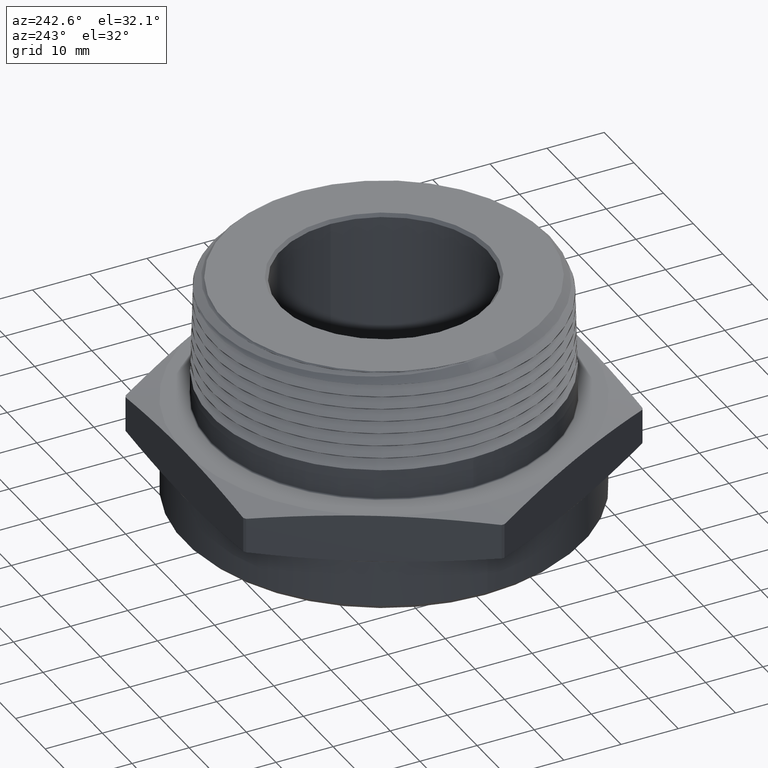
[diagram: clean part render]
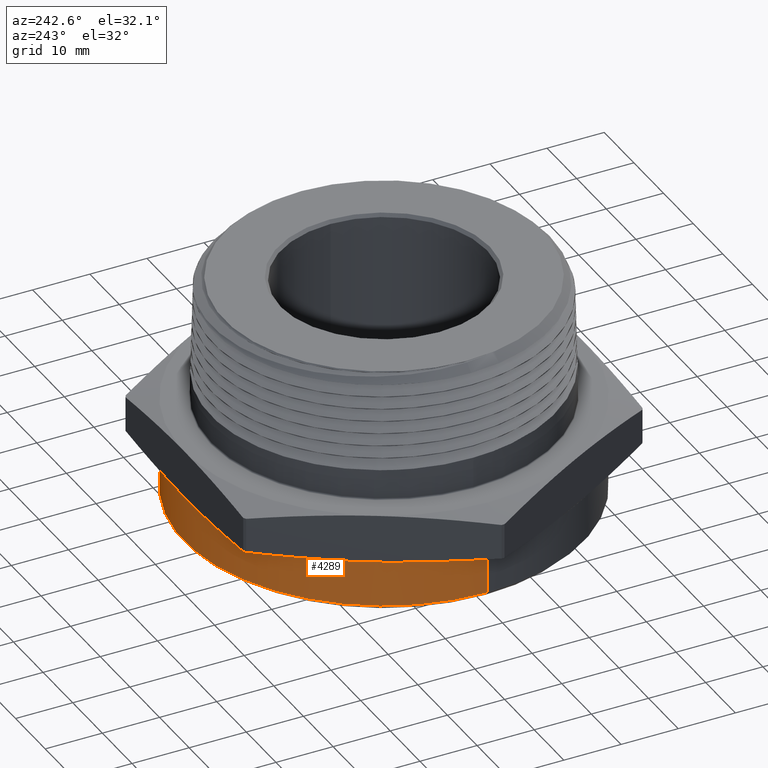
[diagram: same view with one face highlighted and labeled with its STEP entity id]
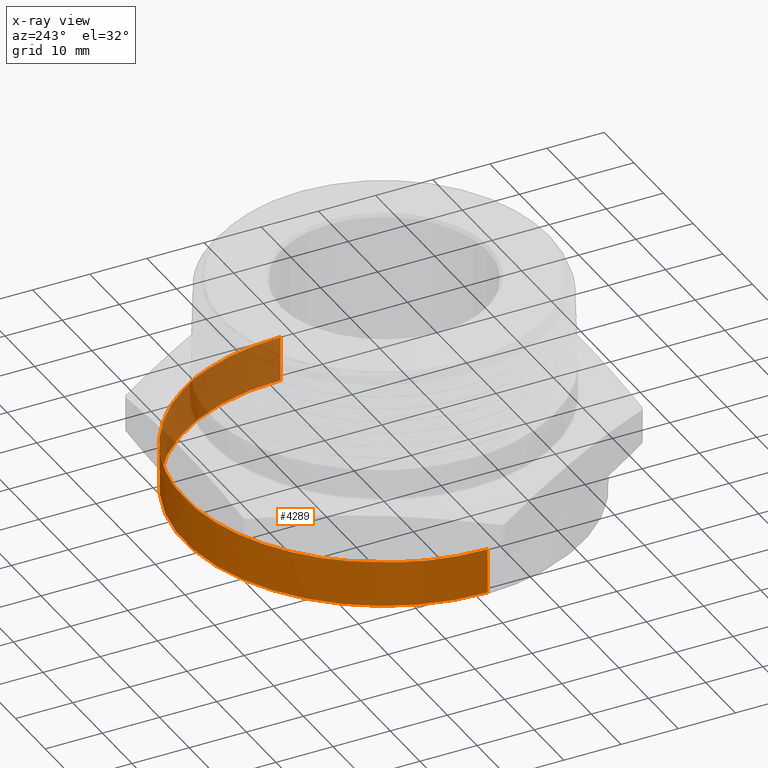
[diagram: x-ray of the same camera — body ghosted, the highlighted face saturated]
A machine part, auxiliary view. The second image highlights one B-rep face of the part: STEP entity #4289.
The next image is the same camera in x-ray: the body ghosted, the highlighted face saturated — about 27% of this face is hidden behind the body in this view.
In plain terms, the highlighted cylindrical surface (partial cylindrical patch) has radius 34.915 mm, axis along (0, 0, 1).
Its self-contained STEP definition (entity closure, byte-faithful):
#93 = B_SPLINE_CURVE_WITH_KNOTS ( 'NONE', 3,
 ( #724, #725, #729, #730, #731, #732, #733, #734, #735, #736, #737, #738, #739, #740 ),
 .UNSPECIFIED., .F., .F.,
 ( 4, 2, 2, 2, 2, 2, 4 ),
 ( 0.0000000000000000000, 0.001824775632309689500, 0.002737163448464529300, 0.003649551264619369400, 0.004561939080774209500, 0.005474326896929048200, 0.007299102529238720600 ),
 .UNSPECIFIED. ) ;
#566 = CARTESIAN_POINT ( 'NONE',  ( -0.1432454279627999000, 1.367122242230997400, -0.008097840331950394500 ) ) ;
#567 = CARTESIAN_POINT ( 'NONE',  ( -1.374606299212598500, 1.683407204418497500E-016, -0.008097840331950316400 ) ) ;
#570 = CARTESIAN_POINT ( 'NONE',  ( -1.255585305832187700, 0.5595069415237380300, -0.008097840331950323400 ) ) ;
#575 = CARTESIAN_POINT ( 'NONE',  ( 0.1432454279627999300, 1.367122242230997400, -0.008097840331950411800 ) ) ;
#576 = CARTESIAN_POINT ( 'NONE',  ( 1.112339877869386500, 0.8076153007072575100, -0.008097840331950472600 ) ) ;
#577 = CARTESIAN_POINT ( 'NONE',  ( 1.255585305832186600, 0.5595069415237408100, -0.008097840331950483000 ) ) ;
#578 = CARTESIAN_POINT ( 'NONE',  ( 1.374606299212598500, 0.0000000000000000000, -0.008097840331950489900 ) ) ;
#637 = CARTESIAN_POINT ( 'NONE',  ( -1.112339877869385400, 0.8076153007072590700, -0.008097840331950333800 ) ) ;
#656 = CARTESIAN_POINT ( 'NONE',  ( 1.374606299212598500, 0.0000000000000000000, -0.3199999999999996200 ) ) ;
#657 = CARTESIAN_POINT ( 'NONE',  ( -1.374606299212598500, 1.683407204418497500E-016, -0.3199999999999996200 ) ) ;
#698 = CARTESIAN_POINT ( 'NONE',  ( 0.0000000000000000000, 0.0000000000000000000, -0.3199999999999996200 ) ) ;
#699 = DIRECTION ( 'NONE',  ( 0.0000000000000000000, 0.0000000000000000000, 1.000000000000000000 ) ) ;
#700 = DIRECTION ( 'NONE',  ( -1.000000000000000000, 0.0000000000000000000, 0.0000000000000000000 ) ) ;
#713 = CARTESIAN_POINT ( 'NONE',  ( 0.0000000000000000000, 0.0000000000000000000, -0.008097840331950403200 ) ) ;
#714 = DIRECTION ( 'NONE',  ( -6.274932739761922300E-017, -0.0000000000000000000, -1.000000000000000000 ) ) ;
#715 = DIRECTION ( 'NONE',  ( -1.000000000000000000, 0.0000000000000000000, 6.288155232086915300E-017 ) ) ;
#719 = CARTESIAN_POINT ( 'NONE',  ( -1.374606299212598500, 1.683407204418497500E-016, -0.3599999999999999900 ) ) ;
#720 = DIRECTION ( 'NONE',  ( -0.0000000000000000000, -0.0000000000000000000, 1.000000000000000000 ) ) ;
#724 = CARTESIAN_POINT ( 'NONE',  ( -1.255585305832187700, 0.5595069415237380300, -0.008097840331950323400 ) ) ;
#725 = CARTESIAN_POINT ( 'NONE',  ( -1.245836642652707000, 0.5813838430083370100, -0.008097840331950155100 ) ) ;
#729 = CARTESIAN_POINT ( 'NONE',  ( -1.235523764346031100, 0.6029882535388235700, -0.007126066441219693900 ) ) ;
#730 = CARTESIAN_POINT ( 'NONE',  ( -1.219240642218467000, 0.6349311508197670300, -0.005238497239708470900 ) ) ;
#731 = CARTESIAN_POINT ( 'NONE',  ( -1.213675407137487800, 0.6455055487275681600, -0.004522194575074542000 ) ) ;
#732 = CARTESIAN_POINT ( 'NONE',  ( -1.202264396788997200, 0.6665176123269458400, -0.003245618310908094000 ) ) ;
#733 = CARTESIAN_POINT ( 'NONE',  ( -1.196421868225769700, 0.6769494388475181300, -0.002694132162923796500 ) ) ;
#734 = CARTESIAN_POINT ( 'NONE',  ( -1.184448648612924000, 0.6976870561532787500, -0.002695124420955359200 ) ) ;
#735 = CARTESIAN_POINT ( 'NONE',  ( -1.178328778954632400, 0.7079735592674840600, -0.003247932820578342500 ) ) ;
#736 = CARTESIAN_POINT ( 'NONE',  ( -1.165842598067856600, 0.7283517752192108000, -0.004524368469978079900 ) ) ;
#737 = CARTESIAN_POINT ( 'NONE',  ( -1.159470592983083500, 0.7384531885435206000, -0.005240182578535109100 ) ) ;
#738 = CARTESIAN_POINT ( 'NONE',  ( -1.139957988607032600, 0.7685109116705389800, -0.007126515463493598500 ) ) ;
#739 = CARTESIAN_POINT ( 'NONE',  ( -1.126422586886128400, 0.7882189881138300700, -0.008097840331997776700 ) ) ;
#740 = CARTESIAN_POINT ( 'NONE',  ( -1.112339877869385400, 0.8076153007072590700, -0.008097840331950333800 ) ) ;
#741 = CARTESIAN_POINT ( 'NONE',  ( -0.1432454279627999000, 1.367122242230997400, -0.008097840331950394500 ) ) ;
#742 = CARTESIAN_POINT ( 'NONE',  ( -0.1194251439313076100, 1.369618103006927900, -0.008097840331950344200 ) ) ;
#743 = CARTESIAN_POINT ( 'NONE',  ( 0.0000000000000000000, 0.0000000000000000000, -0.008097840331950403200 ) ) ;
#744 = DIRECTION ( 'NONE',  ( -6.274932739761922300E-017, -0.0000000000000000000, -1.000000000000000000 ) ) ;
#745 = DIRECTION ( 'NONE',  ( -1.000000000000000000, 0.0000000000000000000, 6.288155232086915300E-017 ) ) ;
#746 = CARTESIAN_POINT ( 'NONE',  ( 1.374606299212598500, 0.0000000000000000000, -0.3599999999999999900 ) ) ;
#747 = CARTESIAN_POINT ( 'NONE',  ( -0.09555873642478054900, 1.371489093672453500, -0.007126066441219781500 ) ) ;
#748 = CARTESIAN_POINT ( 'NONE',  ( -0.05975381484522480900, 1.373358944897530500, -0.005238497239709064200 ) ) ;
#749 = CARTESIAN_POINT ( 'NONE',  ( -0.04781350008685483100, 1.373826508893269700, -0.004522194575074913300 ) ) ;
#750 = CARTESIAN_POINT ( 'NONE',  ( -0.02391101404961459800, 1.374450315848318800, -0.003245618310908350300 ) ) ;
#751 = CARTESIAN_POINT ( 'NONE',  ( -0.01195552299331296100, 1.374606450950513100, -0.002694132162926925100 ) ) ;
#752 = CARTESIAN_POINT ( 'NONE',  ( 0.01199039021385806700, 1.374606147253579300, -0.002695124420957610000 ) ) ;
#753 = CARTESIAN_POINT ( 'NONE',  ( 0.02395869805601299300, 1.374449436218751800, -0.003247932820579554600 ) ) ;
#754 = CARTESIAN_POINT ( 'NONE',  ( 0.04784984119740132900, 1.373825194350419600, -0.004524368469978902100 ) ) ;
#755 = CARTESIAN_POINT ( 'NONE',  ( 0.05978392429276639000, 1.373357582736117700, -0.005240182578535718800 ) ) ;
#756 = CARTESIAN_POINT ( 'NONE',  ( 0.09557097828870786400, 1.371488033215970900, -0.007126515463493942800 ) ) ;
#757 = CARTESIAN_POINT ( 'NONE',  ( 0.1194063740087754900, 1.369620069696886500, -0.008097840331997990100 ) ) ;
#758 = CARTESIAN_POINT ( 'NONE',  ( 0.1432454279627999300, 1.367122242230997400, -0.008097840331950411800 ) ) ;
#759 = CARTESIAN_POINT ( 'NONE',  ( 1.112339877869386500, 0.8076153007072575100, -0.008097840331950472600 ) ) ;
#760 = CARTESIAN_POINT ( 'NONE',  ( 1.126411498721397600, 0.7882342599985895400, -0.008097840331950345900 ) ) ;
#761 = CARTESIAN_POINT ( 'NONE',  ( 0.0000000000000000000, 0.0000000000000000000, -0.008097840331950403200 ) ) ;
#762 = DIRECTION ( 'NONE',  ( -6.274932739761922300E-017, -0.0000000000000000000, -1.000000000000000000 ) ) ;
#763 = DIRECTION ( 'NONE',  ( -1.000000000000000000, 0.0000000000000000000, 6.288155232086915300E-017 ) ) ;
#764 = DIRECTION ( 'NONE',  ( -0.0000000000000000000, -0.0000000000000000000, 1.000000000000000000 ) ) ;
#765 = CARTESIAN_POINT ( 'NONE',  ( 1.139965027921249400, 0.7685008401336284000, -0.007126066441219929000 ) ) ;
#766 = CARTESIAN_POINT ( 'NONE',  ( 1.159486827373241300, 0.7384277940777619300, -0.005238497239708959200 ) ) ;
#767 = CARTESIAN_POINT ( 'NONE',  ( 1.165861907050632400, 0.7283209601657015800, -0.004522194575074555900 ) ) ;
#768 = CARTESIAN_POINT ( 'NONE',  ( 1.178353382739382200, 0.7079327035213731600, -0.003245618310907399200 ) ) ;
#769 = CARTESIAN_POINT ( 'NONE',  ( 1.184466345232455500, 0.6976570121029952400, -0.002694132162925925500 ) ) ;
#770 = CARTESIAN_POINT ( 'NONE',  ( 1.196439038826781200, 0.6769190911003009100, -0.002695124420956878000 ) ) ;
#771 = CARTESIAN_POINT ( 'NONE',  ( 1.202287477010644900, 0.6664758769512686400, -0.003247932820579241500 ) ) ;
#772 = CARTESIAN_POINT ( 'NONE',  ( 1.213692439265257500, 0.6454734191312098100, -0.004524368469978918600 ) ) ;
#773 = CARTESIAN_POINT ( 'NONE',  ( 1.219254517275849800, 0.6349043941925980300, -0.005240182578535613000 ) ) ;
#774 = CARTESIAN_POINT ( 'NONE',  ( 1.235528966895741000, 0.6029771215454341500, -0.007126515463494010500 ) ) ;
#775 = CARTESIAN_POINT ( 'NONE',  ( 1.245828960894904000, 0.5814010815830583700, -0.008097840331998331900 ) ) ;
#776 = CARTESIAN_POINT ( 'NONE',  ( 1.255585305832186600, 0.5595069415237408100, -0.008097840331950483000 ) ) ;
#778 = CARTESIAN_POINT ( 'NONE',  ( 0.0000000000000000000, 0.0000000000000000000, -0.008097840331950403200 ) ) ;
#779 = DIRECTION ( 'NONE',  ( -6.274932739761922300E-017, -0.0000000000000000000, -1.000000000000000000 ) ) ;
#780 = DIRECTION ( 'NONE',  ( -1.000000000000000000, 0.0000000000000000000, 6.288155232086915300E-017 ) ) ;
#1582 = AXIS2_PLACEMENT_3D ( 'NONE', #698, #699, #700 ) ;
#1587 = AXIS2_PLACEMENT_3D ( 'NONE', #713, #714, #715 ) ;
#1591 = AXIS2_PLACEMENT_3D ( 'NONE', #743, #744, #745 ) ;
#1592 = AXIS2_PLACEMENT_3D ( 'NONE', #761, #762, #763 ) ;
#1593 = AXIS2_PLACEMENT_3D ( 'NONE', #778, #779, #780 ) ;
#1620 = AXIS2_PLACEMENT_3D ( 'NONE', #4919, #4920, #4918 ) ;
#1949 = EDGE_LOOP ( 'NONE', ( #3469, #3470, #3471, #3472, #3473, #3474, #3475, #3476, #3477, #3478 ) ) ;
#1952 = VERTEX_POINT ( 'NONE', #567 ) ;
#1955 = VERTEX_POINT ( 'NONE', #570 ) ;
#1961 = VERTEX_POINT ( 'NONE', #566 ) ;
#1962 = VERTEX_POINT ( 'NONE', #575 ) ;
#1963 = VERTEX_POINT ( 'NONE', #576 ) ;
#1964 = VERTEX_POINT ( 'NONE', #577 ) ;
#1965 = VERTEX_POINT ( 'NONE', #578 ) ;
#2074 = VERTEX_POINT ( 'NONE', #637 ) ;
#2093 = VERTEX_POINT ( 'NONE', #656 ) ;
#2094 = VERTEX_POINT ( 'NONE', #657 ) ;
#2952 = CIRCLE ( 'NONE', #1582, 1.374606299212598500 ) ;
#2956 = CIRCLE ( 'NONE', #1587, 1.374606299212598500 ) ;
#2962 = LINE ( 'NONE', #719, #2964 ) ;
#2963 = LINE ( 'NONE', #746, #2969 ) ;
#2964 = VECTOR ( 'NONE', #720, 39.37007874015748100 ) ;
#2965 = CIRCLE ( 'NONE', #1591, 1.374606299212598500 ) ;
#2966 = CIRCLE ( 'NONE', #1592, 1.374606299212598500 ) ;
#2967 = CIRCLE ( 'NONE', #1593, 1.374606299212598500 ) ;
#2969 = VECTOR ( 'NONE', #764, 39.37007874015748100 ) ;
#3018 = CYLINDRICAL_SURFACE ( 'NONE', #1620, 1.374606299212598500 ) ;
#3040 = FACE_OUTER_BOUND ( 'NONE', #1949, .T. ) ;
#3469 = ORIENTED_EDGE ( 'NONE', *, *, #4047, .T. ) ;
#3470 = ORIENTED_EDGE ( 'NONE', *, *, #4071, .T. ) ;
#3471 = ORIENTED_EDGE ( 'NONE', *, *, #4061, .T. ) ;
#3472 = ORIENTED_EDGE ( 'NONE', *, *, #4073, .T. ) ;
#3473 = ORIENTED_EDGE ( 'NONE', *, *, #4075, .T. ) ;
#3474 = ORIENTED_EDGE ( 'NONE', *, *, #4078, .T. ) ;
#3475 = ORIENTED_EDGE ( 'NONE', *, *, #4080, .T. ) ;
#3476 = ORIENTED_EDGE ( 'NONE', *, *, #4082, .T. ) ;
#3477 = ORIENTED_EDGE ( 'NONE', *, *, #4085, .T. ) ;
#3478 = ORIENTED_EDGE ( 'NONE', *, *, #4087, .F. ) ;
#4047 = EDGE_CURVE ( 'NONE', #2093, #2094, #2952, .T. ) ;
#4061 = EDGE_CURVE ( 'NONE', #1952, #1955, #2956, .T. ) ;
#4071 = EDGE_CURVE ( 'NONE', #2094, #1952, #2962, .T. ) ;
#4073 = EDGE_CURVE ( 'NONE', #1955, #2074, #93, .T. ) ;
#4075 = EDGE_CURVE ( 'NONE', #2074, #1961, #2965, .T. ) ;
#4078 = EDGE_CURVE ( 'NONE', #1961, #1962, #8947, .T. ) ;
#4080 = EDGE_CURVE ( 'NONE', #1962, #1963, #2966, .T. ) ;
#4082 = EDGE_CURVE ( 'NONE', #1963, #1964, #8953, .T. ) ;
#4085 = EDGE_CURVE ( 'NONE', #1964, #1965, #2967, .T. ) ;
#4087 = EDGE_CURVE ( 'NONE', #2093, #1965, #2963, .T. ) ;
#4289 = ADVANCED_FACE ( 'NONE', ( #3040 ), #3018, .T. ) ;
#4918 = DIRECTION ( 'NONE',  ( 1.000000000000000000, 0.0000000000000000000, 0.0000000000000000000 ) ) ;
#4919 = CARTESIAN_POINT ( 'NONE',  ( 0.0000000000000000000, 0.0000000000000000000, -0.3599999999999999900 ) ) ;
#4920 = DIRECTION ( 'NONE',  ( -0.0000000000000000000, -0.0000000000000000000, 1.000000000000000000 ) ) ;
#8947 = B_SPLINE_CURVE_WITH_KNOTS ( 'NONE', 3,
 ( #741, #742, #747, #748, #749, #750, #751, #752, #753, #754, #755, #756, #757, #758 ),
 .UNSPECIFIED., .F., .F.,
 ( 4, 2, 2, 2, 2, 2, 4 ),
 ( 0.0000000000000000000, 0.001824775632309651100, 0.002737163448464477300, 0.003649551264619303500, 0.004561939080774129700, 0.005474326896928956300, 0.007299102529238610400 ),
 .UNSPECIFIED. ) ;
#8953 = B_SPLINE_CURVE_WITH_KNOTS ( 'NONE', 3,
 ( #759, #760, #765, #766, #767, #768, #769, #770, #771, #772, #773, #774, #775, #776 ),
 .UNSPECIFIED., .F., .F.,
 ( 4, 2, 2, 2, 2, 2, 4 ),
 ( 0.0000000000000000000, 0.001824775632309649600, 0.002737163448464476800, 0.003649551264619304300, 0.004561939080774131400, 0.005474326896928958000, 0.007299102529238603500 ),
 .UNSPECIFIED. ) ;